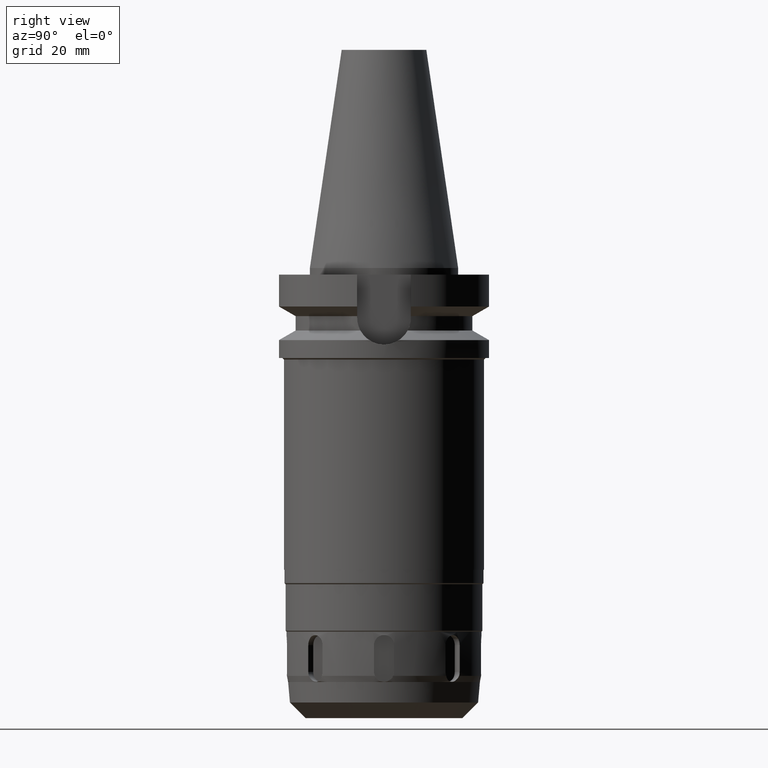
[diagram: clean part render]
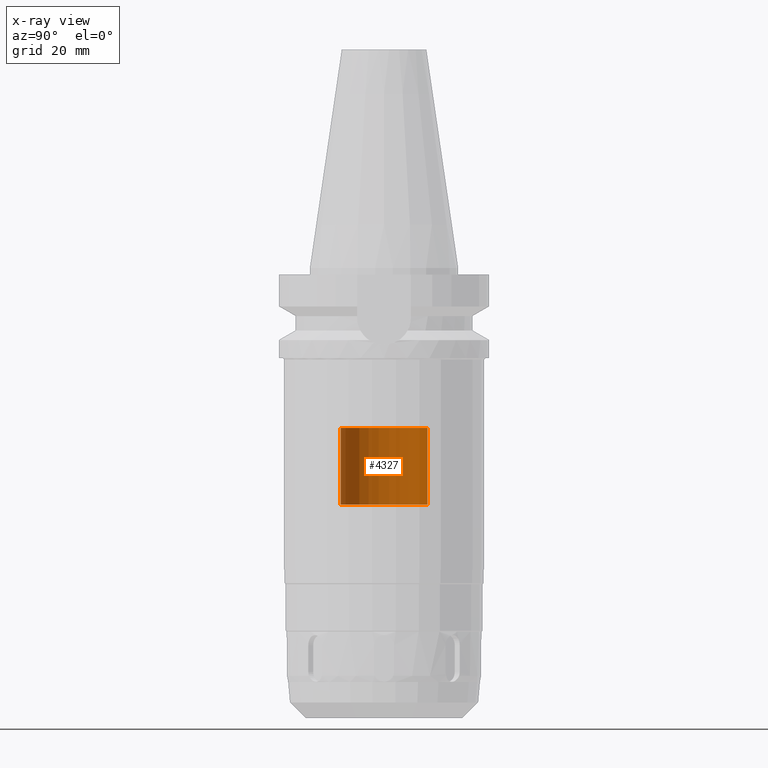
[diagram: x-ray — body ghosted, one internal face saturated and labeled with its STEP entity id]
A machine part, right view, then the same camera in x-ray: the body is ghosted and one INTERNAL B-rep face — a face not visible from any outside direction — is saturated and labeled: STEP entity #4327.
In plain terms, the highlighted cylindrical surface (partial cylindrical patch) has radius 13 mm, axis along (0, 0, -1).
Its self-contained STEP definition (entity closure, byte-faithful):
#2212=CARTESIAN_POINT('',(0.E0,2.148275415064E-14,-7.1E1));
#2213=DIRECTION('',(0.E0,0.E0,-1.E0));
#2214=DIRECTION('',(0.E0,-1.E0,0.E0));
#2215=AXIS2_PLACEMENT_3D('',#2212,#2213,#2214);
#2244=DIRECTION('',(0.E0,0.E0,1.E0));
#2245=VECTOR('',#2244,2.3E1);
#2246=CARTESIAN_POINT('',(0.E0,-1.3E1,-7.1E1));
#2247=LINE('',#2246,#2245);
#2251=DIRECTION('',(0.E0,0.E0,1.E0));
#2252=VECTOR('',#2251,2.3E1);
#2253=CARTESIAN_POINT('',(0.E0,1.3E1,-7.1E1));
#2254=LINE('',#2253,#2252);
#2266=CARTESIAN_POINT('',(0.E0,2.148275415064E-14,-4.8E1));
#2267=DIRECTION('',(0.E0,0.E0,1.E0));
#2268=DIRECTION('',(0.E0,1.E0,0.E0));
#2269=AXIS2_PLACEMENT_3D('',#2266,#2267,#2268);
#2470=CARTESIAN_POINT('',(0.E0,-1.3E1,-4.8E1));
#2471=CARTESIAN_POINT('',(0.E0,1.3E1,-4.8E1));
#2472=VERTEX_POINT('',#2470);
#2473=VERTEX_POINT('',#2471);
#2474=CARTESIAN_POINT('',(0.E0,1.3E1,-7.1E1));
#2475=VERTEX_POINT('',#2474);
#2476=CARTESIAN_POINT('',(0.E0,-1.3E1,-7.1E1));
#2477=VERTEX_POINT('',#2476);
#4313=CARTESIAN_POINT('',(0.E0,2.148275415064E-14,7.542E1));
#4314=DIRECTION('',(0.E0,0.E0,-1.E0));
#4315=DIRECTION('',(0.E0,-1.E0,0.E0));
#4316=AXIS2_PLACEMENT_3D('',#4313,#4314,#4315);
#4317=CYLINDRICAL_SURFACE('',#4316,1.3E1);
#4319=ORIENTED_EDGE('',*,*,#4318,.F.);
#4320=ORIENTED_EDGE('',*,*,#4302,.F.);
#4322=ORIENTED_EDGE('',*,*,#4321,.T.);
#4324=ORIENTED_EDGE('',*,*,#4323,.F.);
#4325=EDGE_LOOP('',(#4319,#4320,#4322,#4324));
#4326=FACE_OUTER_BOUND('',#4325,.F.);
#2216=CIRCLE('',#2215,1.3E1);
#2270=CIRCLE('',#2269,1.3E1);
#4302=EDGE_CURVE('',#2477,#2475,#2216,.T.);
#4318=EDGE_CURVE('',#2475,#2473,#2254,.T.);
#4321=EDGE_CURVE('',#2477,#2472,#2247,.T.);
#4323=EDGE_CURVE('',#2473,#2472,#2270,.T.);
#4327=ADVANCED_FACE('',(#4326),#4317,.F.);